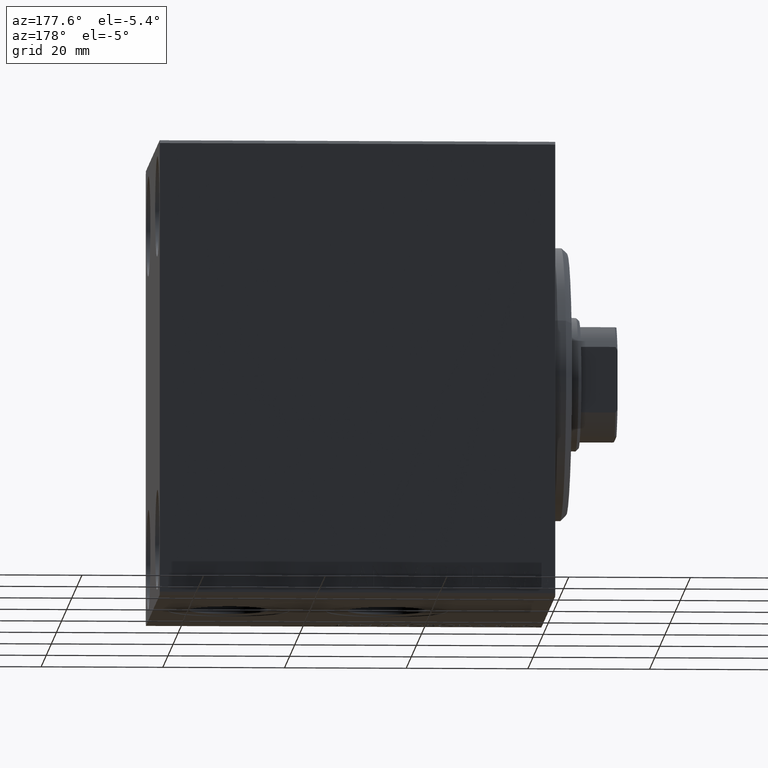
[diagram: clean part render]
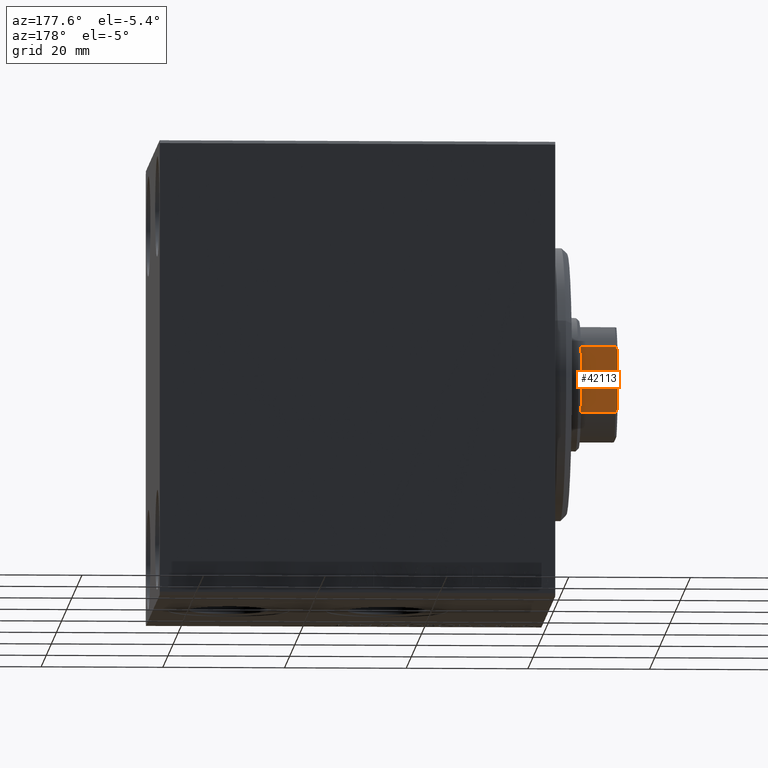
[diagram: same view with one face highlighted and labeled with its STEP entity id]
A machine part, auxiliary view. The second image highlights one B-rep face of the part: STEP entity #42113.
In plain terms, the highlighted planar face has unit normal (0, -1, 0).
Its self-contained STEP definition (entity closure, byte-faithful):
#1307 = CARTESIAN_POINT ( 'NONE',  ( 4.800000000000035350, 8.999999999999998224, 61.99999999999999289 ) ) ;
#2374 = CARTESIAN_POINT ( 'NONE',  ( -9.000000000000001776, 8.999999999999998224, 55.99999999999999289 ) ) ;
#2493 = CARTESIAN_POINT ( 'NONE',  ( -5.004607318780307956, 8.999999999999998224, 61.90371420292692051 ) ) ;
#3878 = CARTESIAN_POINT ( 'NONE',  ( -9.000000000000001776, 8.999999999999998224, 61.99999999999999289 ) ) ;
#4080 = B_SPLINE_CURVE_WITH_KNOTS ( 'NONE', 3,
 ( #12519, #9847, #2493, #36088 ),
 .UNSPECIFIED., .F., .F.,
 ( 4, 4 ),
 ( 0.000000000000000000, 0.0006782784334759225150 ),
 .UNSPECIFIED. ) ;
#4538 = CARTESIAN_POINT ( 'NONE',  ( 5.207299490555487687, 8.999999999999998224, 61.80354495430068340 ) ) ;
#5351 = CARTESIAN_POINT ( 'NONE',  ( -5.408326913195988794, 8.999999999999998224, -0.001000000000001000089 ) ) ;
#6006 = LINE ( 'NONE', #5351, #19641 ) ;
#6903 = CARTESIAN_POINT ( 'NONE',  ( 5.408326913195989682, 8.999999999999998224, -0.001000000000001000089 ) ) ;
#7506 = ORIENTED_EDGE ( 'NONE', *, *, #16328, .F. ) ;
#7595 = ORIENTED_EDGE ( 'NONE', *, *, #35777, .T. ) ;
#8672 = VERTEX_POINT ( 'NONE', #33422 ) ;
#9384 = VERTEX_POINT ( 'NONE', #28776 ) ;
#9847 = CARTESIAN_POINT ( 'NONE',  ( -5.207299490555474364, 8.999999999999998224, 61.80354495430067630 ) ) ;
#11850 = EDGE_CURVE ( 'NONE', #9384, #18066, #6006, .T. ) ;
#12081 = VERTEX_POINT ( 'NONE', #1307 ) ;
#12134 = ORIENTED_EDGE ( 'NONE', *, *, #11850, .T. ) ;
#12519 = CARTESIAN_POINT ( 'NONE',  ( -5.408326913195988794, 8.999999999999998224, 61.70000000000000284 ) ) ;
#13519 = ORIENTED_EDGE ( 'NONE', *, *, #31675, .F. ) ;
#14152 = VERTEX_POINT ( 'NONE', #41353 ) ;
#14492 = ORIENTED_EDGE ( 'NONE', *, *, #26130, .T. ) ;
#14977 = PLANE ( 'NONE',  #34006 ) ;
#16328 = EDGE_CURVE ( 'NONE', #12081, #8672, #18227, .T. ) ;
#17446 = DIRECTION ( 'NONE',  ( 0.000000000000000000, -1.000000000000000000, 0.000000000000000000 ) ) ;
#17526 = ORIENTED_EDGE ( 'NONE', *, *, #19789, .T. ) ;
#17665 = FACE_OUTER_BOUND ( 'NONE', #33339, .T. ) ;
#18066 = VERTEX_POINT ( 'NONE', #25870 ) ;
#18079 = VECTOR ( 'NONE', #33580, 1000.000000000000000 ) ;
#18227 = LINE ( 'NONE', #27817, #18361 ) ;
#18361 = VECTOR ( 'NONE', #21357, 1000.000000000000000 ) ;
#19641 = VECTOR ( 'NONE', #35602, 1000.000000000000000 ) ;
#19789 = EDGE_CURVE ( 'NONE', #18066, #8672, #4080, .T. ) ;
#21357 = DIRECTION ( 'NONE',  ( -1.000000000000000000, -0.000000000000000000, -0.000000000000000000 ) ) ;
#23551 = VERTEX_POINT ( 'NONE', #38686 ) ;
#23796 = LINE ( 'NONE', #6903, #18079 ) ;
#24129 = DIRECTION ( 'NONE',  ( 0.000000000000000000, -0.000000000000000000, -1.000000000000000000 ) ) ;
#25870 = CARTESIAN_POINT ( 'NONE',  ( -5.408326913195988794, 8.999999999999998224, 61.70000000000000284 ) ) ;
#26130 = EDGE_CURVE ( 'NONE', #23551, #9384, #36193, .T. ) ;
#27817 = CARTESIAN_POINT ( 'NONE',  ( -9.000000000000001776, 8.999999999999998224, 61.99999999999999289 ) ) ;
#28776 = CARTESIAN_POINT ( 'NONE',  ( -5.408326913196000341, 8.999999999999998224, 55.99999999999999289 ) ) ;
#29012 = CARTESIAN_POINT ( 'NONE',  ( 5.004607318780325720, 8.999999999999998224, 61.90371420292691340 ) ) ;
#31675 = EDGE_CURVE ( 'NONE', #23551, #14152, #23796, .T. ) ;
#32270 = VECTOR ( 'NONE', #36621, 1000.000000000000000 ) ;
#33339 = EDGE_LOOP ( 'NONE', ( #7506, #7595, #13519, #14492, #12134, #17526 ) ) ;
#33422 = CARTESIAN_POINT ( 'NONE',  ( -4.800000000000001599, 8.999999999999998224, 61.99999999999999289 ) ) ;
#33580 = DIRECTION ( 'NONE',  ( -0.000000000000000000, -0.000000000000000000, 1.000000000000000000 ) ) ;
#34006 = AXIS2_PLACEMENT_3D ( 'NONE', #3878, #17446, #24129 ) ;
#35602 = DIRECTION ( 'NONE',  ( -0.000000000000000000, -0.000000000000000000, 1.000000000000000000 ) ) ;
#35777 = EDGE_CURVE ( 'NONE', #12081, #14152, #40594, .T. ) ;
#36088 = CARTESIAN_POINT ( 'NONE',  ( -4.800000000000001599, 8.999999999999998224, 61.99999999999999289 ) ) ;
#36193 = LINE ( 'NONE', #2374, #32270 ) ;
#36621 = DIRECTION ( 'NONE',  ( -1.000000000000000000, -0.000000000000000000, -0.000000000000000000 ) ) ;
#38686 = CARTESIAN_POINT ( 'NONE',  ( 5.408326913195989682, 8.999999999999998224, 55.99999999999999289 ) ) ;
#39217 = CARTESIAN_POINT ( 'NONE',  ( 5.408326913195989682, 8.999999999999998224, 61.70000000000000284 ) ) ;
#40594 = B_SPLINE_CURVE_WITH_KNOTS ( 'NONE', 3,
 ( #42570, #29012, #4538, #39217 ),
 .UNSPECIFIED., .F., .F.,
 ( 4, 4 ),
 ( 0.000000000000000000, 0.0006782784334758922657 ),
 .UNSPECIFIED. ) ;
#41353 = CARTESIAN_POINT ( 'NONE',  ( 5.408326913195989682, 8.999999999999998224, 61.70000000000000284 ) ) ;
#42113 = ADVANCED_FACE ( 'NONE', ( #17665 ), #14977, .F. ) ;
#42570 = CARTESIAN_POINT ( 'NONE',  ( 4.800000000000035350, 8.999999999999998224, 61.99999999999999289 ) ) ;